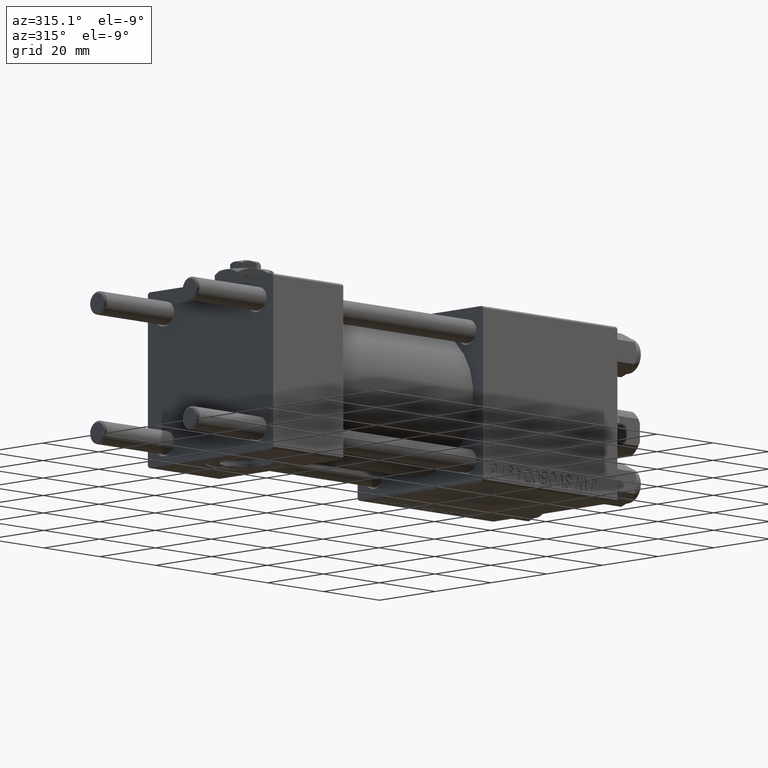
[diagram: clean part render]
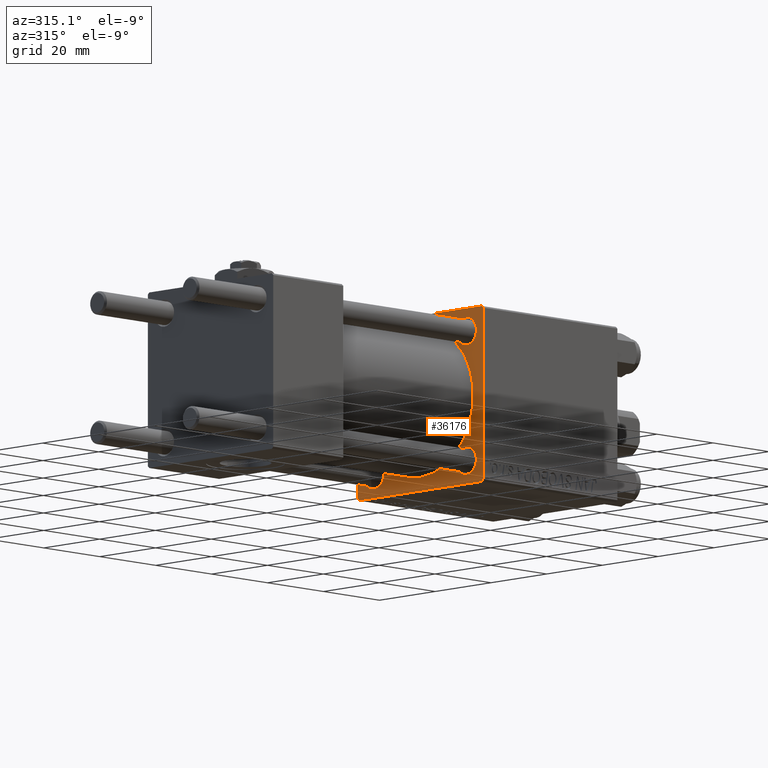
[diagram: same view with one face highlighted and labeled with its STEP entity id]
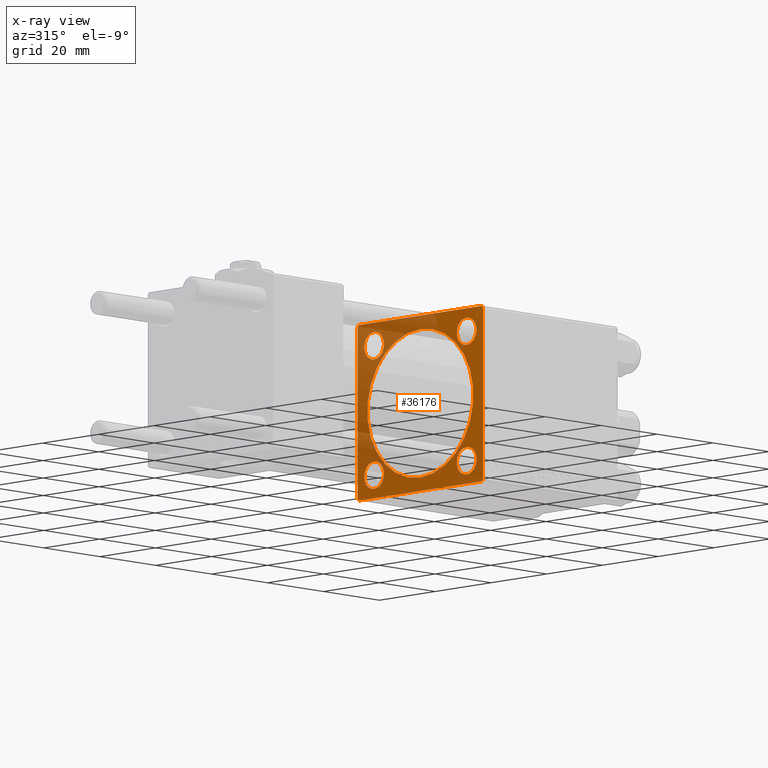
[diagram: x-ray of the same camera — body ghosted, the highlighted face saturated]
A machine part, auxiliary view. The second image highlights one B-rep face of the part: STEP entity #36176.
The next image is the same camera in x-ray: the body ghosted, the highlighted face saturated — about 39% of this face is hidden behind the body in this view.
In plain terms, the highlighted planar face has unit normal (-1, 0, 0).
Its self-contained STEP definition (entity closure, byte-faithful):
#247 = DIRECTION ( 'NONE',  ( 1.000000000000000000, -0.000000000000000000, 0.000000000000000000 ) ) ;
#275 = VECTOR ( 'NONE', #6322, 1000.000000000000000 ) ;
#549 = EDGE_CURVE ( 'NONE', #22510, #27181, #41796, .T. ) ;
#1580 = DIRECTION ( 'NONE',  ( 0.000000000000000000, 0.000000000000000000, -1.000000000000000000 ) ) ;
#2208 = VERTEX_POINT ( 'NONE', #16811 ) ;
#2734 = CARTESIAN_POINT ( 'NONE',  ( 75.00000000000001421, 22.00000000000000355, -22.49999999999999645 ) ) ;
#2980 = DIRECTION ( 'NONE',  ( 0.000000000000000000, 0.000000000000000000, 1.000000000000000000 ) ) ;
#3271 = DIRECTION ( 'NONE',  ( 1.000000000000000000, -0.000000000000000000, 0.000000000000000000 ) ) ;
#3412 = CARTESIAN_POINT ( 'NONE',  ( 75.00000000000001421, -16.59999999999999076, 13.09999999999999076 ) ) ;
#3579 = EDGE_CURVE ( 'NONE', #34559, #18192, #12270, .T. ) ;
#3637 = VERTEX_POINT ( 'NONE', #37806 ) ;
#4294 = AXIS2_PLACEMENT_3D ( 'NONE', #16902, #28652, #44813 ) ;
#4470 = DIRECTION ( 'NONE',  ( 0.000000000000000000, 0.000000000000000000, 1.000000000000000000 ) ) ;
#4617 = EDGE_CURVE ( 'NONE', #18192, #31372, #42302, .T. ) ;
#4878 = CARTESIAN_POINT ( 'NONE',  ( 75.00000000000001421, -16.59999999999999076, 20.10000000000002274 ) ) ;
#5226 = ORIENTED_EDGE ( 'NONE', *, *, #29189, .T. ) ;
#5303 = ORIENTED_EDGE ( 'NONE', *, *, #27408, .T. ) ;
#5596 = VECTOR ( 'NONE', #11462, 1000.000000000000000 ) ;
#5714 = CARTESIAN_POINT ( 'NONE',  ( 75.00000000000001421, -22.49999999999999645, 22.00000000000000711 ) ) ;
#5835 = ORIENTED_EDGE ( 'NONE', *, *, #46165, .T. ) ;
#5997 = DIRECTION ( 'NONE',  ( -1.000000000000000000, 0.000000000000000000, -0.000000000000000000 ) ) ;
#6028 = CIRCLE ( 'NONE', #10189, 3.500000000000016875 ) ;
#6242 = VECTOR ( 'NONE', #35402, 1000.000000000000000 ) ;
#6322 = DIRECTION ( 'NONE',  ( -0.000000000000000000, -0.7071067811865573427, -0.7071067811865378028 ) ) ;
#6339 = EDGE_CURVE ( 'NONE', #26084, #22619, #46140, .T. ) ;
#6376 = ORIENTED_EDGE ( 'NONE', *, *, #41363, .T. ) ;
#6512 = FACE_BOUND ( 'NONE', #38209, .T. ) ;
#7066 = CARTESIAN_POINT ( 'NONE',  ( 75.00000000000001421, 22.50000000000000355, 21.99999999999997513 ) ) ;
#7071 = EDGE_CURVE ( 'NONE', #25717, #3637, #46979, .T. ) ;
#7757 = LINE ( 'NONE', #23669, #13746 ) ;
#8390 = DIRECTION ( 'NONE',  ( 1.000000000000000000, -0.000000000000000000, 0.000000000000000000 ) ) ;
#8684 = AXIS2_PLACEMENT_3D ( 'NONE', #23704, #19018, #15102 ) ;
#10189 = AXIS2_PLACEMENT_3D ( 'NONE', #32019, #28112, #28372 ) ;
#10419 = FACE_BOUND ( 'NONE', #36978, .T. ) ;
#10686 = ORIENTED_EDGE ( 'NONE', *, *, #50237, .T. ) ;
#11069 = CARTESIAN_POINT ( 'NONE',  ( 75.00000000000001421, 16.59999999999999787, 16.60000000000000497 ) ) ;
#11462 = DIRECTION ( 'NONE',  ( 0.000000000000000000, 0.7071067811865573427, -0.7071067811865378028 ) ) ;
#11720 = DIRECTION ( 'NONE',  ( 0.000000000000000000, 0.000000000000000000, 1.000000000000000000 ) ) ;
#11916 = CARTESIAN_POINT ( 'NONE',  ( 75.00000000000001421, 22.50000000000000355, 22.50000000000000355 ) ) ;
#12270 = LINE ( 'NONE', #36266, #27710 ) ;
#12349 = EDGE_CURVE ( 'NONE', #45953, #28729, #24540, .T. ) ;
#12538 = CIRCLE ( 'NONE', #50053, 19.00000000000000000 ) ;
#12571 = VECTOR ( 'NONE', #40915, 1000.000000000000000 ) ;
#12808 = CARTESIAN_POINT ( 'NONE',  ( 75.00000000000001421, 22.50000000000000355, -21.99999999999999645 ) ) ;
#13195 = CARTESIAN_POINT ( 'NONE',  ( 75.00000000000001421, -22.25000000000015277, -22.24999999999984013 ) ) ;
#13289 = VERTEX_POINT ( 'NONE', #16063 ) ;
#13746 = VECTOR ( 'NONE', #39847, 1000.000000000000000 ) ;
#14101 = CARTESIAN_POINT ( 'NONE',  ( 75.00000000000001421, -21.99999999999998224, 22.49999999999999289 ) ) ;
#14427 = CIRCLE ( 'NONE', #17748, 3.500000000000016875 ) ;
#14497 = AXIS2_PLACEMENT_3D ( 'NONE', #11069, #47314, #2980 ) ;
#14515 = EDGE_CURVE ( 'NONE', #28729, #45953, #28791, .T. ) ;
#14536 = DIRECTION ( 'NONE',  ( 0.000000000000000000, 0.000000000000000000, 1.000000000000000000 ) ) ;
#14853 = EDGE_CURVE ( 'NONE', #13289, #2208, #48936, .T. ) ;
#15102 = DIRECTION ( 'NONE',  ( 0.000000000000000000, 0.000000000000000000, 1.000000000000000000 ) ) ;
#15234 = ORIENTED_EDGE ( 'NONE', *, *, #35050, .T. ) ;
#15357 = ORIENTED_EDGE ( 'NONE', *, *, #45050, .F. ) ;
#15789 = ORIENTED_EDGE ( 'NONE', *, *, #549, .T. ) ;
#16063 = CARTESIAN_POINT ( 'NONE',  ( 75.00000000000001421, -21.99999999999998224, -22.50000000000000000 ) ) ;
#16415 = LINE ( 'NONE', #17187, #12571 ) ;
#16811 = CARTESIAN_POINT ( 'NONE',  ( 75.00000000000001421, -22.49999999999999645, -21.99999999999997868 ) ) ;
#16902 = CARTESIAN_POINT ( 'NONE',  ( 75.00000000000001421, -16.59999999999999076, -16.60000000000000853 ) ) ;
#17187 = CARTESIAN_POINT ( 'NONE',  ( 75.00000000000001421, -22.49999999999999645, 22.49999999999999289 ) ) ;
#17472 = FACE_BOUND ( 'NONE', #20501, .T. ) ;
#17748 = AXIS2_PLACEMENT_3D ( 'NONE', #25233, #25500, #14536 ) ;
#18192 = VERTEX_POINT ( 'NONE', #12808 ) ;
#18328 = CARTESIAN_POINT ( 'NONE',  ( 75.00000000000001421, -22.24999999999969447, 22.25000000000030909 ) ) ;
#19018 = DIRECTION ( 'NONE',  ( 1.000000000000000000, -0.000000000000000000, 0.000000000000000000 ) ) ;
#19621 = ORIENTED_EDGE ( 'NONE', *, *, #40955, .T. ) ;
#20319 = CARTESIAN_POINT ( 'NONE',  ( 75.00000000000001421, 16.59999999999999787, -16.60000000000000497 ) ) ;
#20501 = EDGE_LOOP ( 'NONE', ( #28274, #15234 ) ) ;
#20637 = CARTESIAN_POINT ( 'NONE',  ( 75.00000000000001421, 21.99999999999996092, 22.50000000000000355 ) ) ;
#20942 = CIRCLE ( 'NONE', #46742, 3.500000000000016875 ) ;
#21065 = VERTEX_POINT ( 'NONE', #3412 ) ;
#22419 = CARTESIAN_POINT ( 'NONE',  ( 75.00000000000001421, 0.000000000000000000, 0.000000000000000000 ) ) ;
#22510 = VERTEX_POINT ( 'NONE', #50002 ) ;
#22619 = VERTEX_POINT ( 'NONE', #39606 ) ;
#22728 = VERTEX_POINT ( 'NONE', #4878 ) ;
#22734 = CARTESIAN_POINT ( 'NONE',  ( 75.00000000000001421, 22.24999999999969802, -22.25000000000031619 ) ) ;
#23333 = ORIENTED_EDGE ( 'NONE', *, *, #14853, .T. ) ;
#23531 = CARTESIAN_POINT ( 'NONE',  ( 75.00000000000001421, -16.59999999999999076, 16.60000000000000853 ) ) ;
#23669 = CARTESIAN_POINT ( 'NONE',  ( 75.00000000000001421, 22.50000000000000355, -22.49999999999999645 ) ) ;
#23704 = CARTESIAN_POINT ( 'NONE',  ( 75.00000000000001421, -16.59999999999999076, -16.60000000000000853 ) ) ;
#24540 = CIRCLE ( 'NONE', #30389, 3.500000000000031086 ) ;
#24655 = EDGE_LOOP ( 'NONE', ( #5835, #23333, #51015, #6376, #15357, #10686, #27612, #27144 ) ) ;
#25233 = CARTESIAN_POINT ( 'NONE',  ( 75.00000000000001421, -16.59999999999999076, 16.60000000000000853 ) ) ;
#25500 = DIRECTION ( 'NONE',  ( 1.000000000000000000, -0.000000000000000000, 0.000000000000000000 ) ) ;
#25551 = PLANE ( 'NONE',  #40203 ) ;
#25717 = VERTEX_POINT ( 'NONE', #40972 ) ;
#26084 = VERTEX_POINT ( 'NONE', #33329 ) ;
#26155 = LINE ( 'NONE', #18328, #34568 ) ;
#26172 = DIRECTION ( 'NONE',  ( 1.000000000000000000, 0.000000000000000000, 0.000000000000000000 ) ) ;
#26482 = ORIENTED_EDGE ( 'NONE', *, *, #37428, .T. ) ;
#26488 = VERTEX_POINT ( 'NONE', #20637 ) ;
#26514 = VERTEX_POINT ( 'NONE', #14101 ) ;
#26516 = DIRECTION ( 'NONE',  ( 0.000000000000000000, 0.000000000000000000, 1.000000000000000000 ) ) ;
#27144 = ORIENTED_EDGE ( 'NONE', *, *, #4617, .T. ) ;
#27181 = VERTEX_POINT ( 'NONE', #46566 ) ;
#27408 = EDGE_CURVE ( 'NONE', #3637, #25717, #12538, .T. ) ;
#27532 = ORIENTED_EDGE ( 'NONE', *, *, #7071, .T. ) ;
#27612 = ORIENTED_EDGE ( 'NONE', *, *, #3579, .T. ) ;
#27710 = VECTOR ( 'NONE', #32084, 1000.000000000000000 ) ;
#28112 = DIRECTION ( 'NONE',  ( 1.000000000000000000, -0.000000000000000000, 0.000000000000000000 ) ) ;
#28274 = ORIENTED_EDGE ( 'NONE', *, *, #6339, .T. ) ;
#28372 = DIRECTION ( 'NONE',  ( 0.000000000000000000, 0.000000000000000000, 1.000000000000000000 ) ) ;
#28652 = DIRECTION ( 'NONE',  ( 1.000000000000000000, -0.000000000000000000, 0.000000000000000000 ) ) ;
#28691 = EDGE_LOOP ( 'NONE', ( #43375, #42048 ) ) ;
#28729 = VERTEX_POINT ( 'NONE', #34113 ) ;
#28791 = CIRCLE ( 'NONE', #47088, 3.500000000000031086 ) ;
#29189 = EDGE_CURVE ( 'NONE', #22728, #21065, #20942, .T. ) ;
#30389 = AXIS2_PLACEMENT_3D ( 'NONE', #50767, #3271, #26516 ) ;
#30595 = DIRECTION ( 'NONE',  ( 0.000000000000000000, 0.000000000000000000, -1.000000000000000000 ) ) ;
#31372 = VERTEX_POINT ( 'NONE', #2734 ) ;
#31744 = EDGE_CURVE ( 'NONE', #45885, #2208, #16415, .T. ) ;
#32019 = CARTESIAN_POINT ( 'NONE',  ( 75.00000000000001421, 16.59999999999999787, 16.60000000000000497 ) ) ;
#32053 = LINE ( 'NONE', #47190, #5596 ) ;
#32084 = DIRECTION ( 'NONE',  ( 0.000000000000000000, 0.000000000000000000, -1.000000000000000000 ) ) ;
#33329 = CARTESIAN_POINT ( 'NONE',  ( 75.00000000000001421, 16.59999999999999787, 20.10000000000001918 ) ) ;
#33890 = FACE_BOUND ( 'NONE', #50828, .T. ) ;
#34113 = CARTESIAN_POINT ( 'NONE',  ( 75.00000000000001421, 16.59999999999999787, -13.09999999999997300 ) ) ;
#34233 = DIRECTION ( 'NONE',  ( -0.000000000000000000, 0.7071067811865573427, 0.7071067811865378028 ) ) ;
#34559 = VERTEX_POINT ( 'NONE', #7066 ) ;
#34568 = VECTOR ( 'NONE', #34233, 1000.000000000000000 ) ;
#35018 = CARTESIAN_POINT ( 'NONE',  ( 75.00000000000001421, 0.000000000000000000, 0.000000000000000000 ) ) ;
#35050 = EDGE_CURVE ( 'NONE', #22619, #26084, #6028, .T. ) ;
#35146 = CARTESIAN_POINT ( 'NONE',  ( 75.00000000000001421, 16.59999999999999787, -20.10000000000003340 ) ) ;
#35402 = DIRECTION ( 'NONE',  ( 0.000000000000000000, -1.000000000000000000, -2.312964634635742957E-16 ) ) ;
#36176 = ADVANCED_FACE ( 'NONE', ( #6512, #17472, #46148, #10419, #33890, #37302 ), #25551, .T. ) ;
#36181 = CIRCLE ( 'NONE', #8684, 3.500000000000031086 ) ;
#36266 = CARTESIAN_POINT ( 'NONE',  ( 75.00000000000001421, 22.50000000000000355, 22.50000000000000355 ) ) ;
#36435 = DIRECTION ( 'NONE',  ( 0.000000000000000000, -0.7071067811865425767, 0.7071067811865525687 ) ) ;
#36978 = EDGE_LOOP ( 'NONE', ( #15789, #19621 ) ) ;
#37302 = FACE_OUTER_BOUND ( 'NONE', #24655, .T. ) ;
#37428 = EDGE_CURVE ( 'NONE', #21065, #22728, #14427, .T. ) ;
#37806 = CARTESIAN_POINT ( 'NONE',  ( 75.00000000000001421, 0.000000000000000000, 19.00000000000000000 ) ) ;
#37838 = DIRECTION ( 'NONE',  ( 1.000000000000000000, 0.000000000000000000, 0.000000000000000000 ) ) ;
#38209 = EDGE_LOOP ( 'NONE', ( #5226, #26482 ) ) ;
#39606 = CARTESIAN_POINT ( 'NONE',  ( 75.00000000000001421, 16.59999999999999787, 13.09999999999998721 ) ) ;
#39847 = DIRECTION ( 'NONE',  ( 0.000000000000000000, -1.000000000000000000, -7.709882115452476934E-17 ) ) ;
#40203 = AXIS2_PLACEMENT_3D ( 'NONE', #22419, #5997, #41471 ) ;
#40915 = DIRECTION ( 'NONE',  ( 0.000000000000000000, 0.000000000000000000, -1.000000000000000000 ) ) ;
#40955 = EDGE_CURVE ( 'NONE', #27181, #22510, #36181, .T. ) ;
#40972 = CARTESIAN_POINT ( 'NONE',  ( 75.00000000000001421, 2.326828918379970970E-15, -19.00000000000000000 ) ) ;
#41195 = AXIS2_PLACEMENT_3D ( 'NONE', #41751, #37838, #1580 ) ;
#41363 = EDGE_CURVE ( 'NONE', #45885, #26514, #26155, .T. ) ;
#41471 = DIRECTION ( 'NONE',  ( -0.000000000000000000, 0.000000000000000000, 1.000000000000000000 ) ) ;
#41751 = CARTESIAN_POINT ( 'NONE',  ( 75.00000000000001421, 0.000000000000000000, 0.000000000000000000 ) ) ;
#41796 = CIRCLE ( 'NONE', #4294, 3.500000000000031086 ) ;
#42048 = ORIENTED_EDGE ( 'NONE', *, *, #12349, .T. ) ;
#42302 = LINE ( 'NONE', #22734, #275 ) ;
#43375 = ORIENTED_EDGE ( 'NONE', *, *, #14515, .T. ) ;
#44813 = DIRECTION ( 'NONE',  ( 0.000000000000000000, 0.000000000000000000, 1.000000000000000000 ) ) ;
#45050 = EDGE_CURVE ( 'NONE', #26488, #26514, #47387, .T. ) ;
#45885 = VERTEX_POINT ( 'NONE', #5714 ) ;
#45953 = VERTEX_POINT ( 'NONE', #35146 ) ;
#46140 = CIRCLE ( 'NONE', #14497, 3.500000000000016875 ) ;
#46148 = FACE_BOUND ( 'NONE', #28691, .T. ) ;
#46165 = EDGE_CURVE ( 'NONE', #31372, #13289, #7757, .T. ) ;
#46566 = CARTESIAN_POINT ( 'NONE',  ( 75.00000000000001421, -16.59999999999999076, -20.10000000000003695 ) ) ;
#46742 = AXIS2_PLACEMENT_3D ( 'NONE', #23531, #8390, #4470 ) ;
#46979 = CIRCLE ( 'NONE', #41195, 19.00000000000000000 ) ;
#47088 = AXIS2_PLACEMENT_3D ( 'NONE', #20319, #247, #11720 ) ;
#47190 = CARTESIAN_POINT ( 'NONE',  ( 75.00000000000001421, 22.24999999999968026, 22.25000000000029488 ) ) ;
#47314 = DIRECTION ( 'NONE',  ( 1.000000000000000000, -0.000000000000000000, 0.000000000000000000 ) ) ;
#47387 = LINE ( 'NONE', #11916, #6242 ) ;
#48818 = VECTOR ( 'NONE', #36435, 999.9999999999998863 ) ;
#48936 = LINE ( 'NONE', #13195, #48818 ) ;
#50002 = CARTESIAN_POINT ( 'NONE',  ( 75.00000000000001421, -16.59999999999999076, -13.09999999999997655 ) ) ;
#50053 = AXIS2_PLACEMENT_3D ( 'NONE', #35018, #26172, #30595 ) ;
#50237 = EDGE_CURVE ( 'NONE', #26488, #34559, #32053, .T. ) ;
#50767 = CARTESIAN_POINT ( 'NONE',  ( 75.00000000000001421, 16.59999999999999787, -16.60000000000000497 ) ) ;
#50828 = EDGE_LOOP ( 'NONE', ( #5303, #27532 ) ) ;
#51015 = ORIENTED_EDGE ( 'NONE', *, *, #31744, .F. ) ;